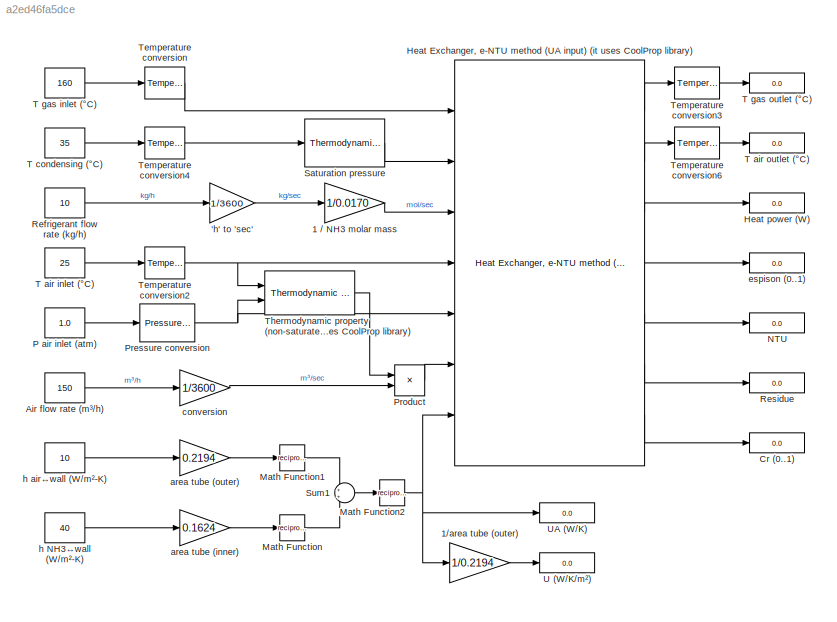
MODEL slx_a2ed46fa5dce
KIND model
CONFIG AbsTol = auto
CONFIG EnableMultiTasking = off
CONFIG FixedStep = auto
CONFIG MaxStep = auto
CONFIG MinStep = auto
CONFIG RelTol = 1e-3
CONFIG SampleTimeConstraint = Unconstrained
CONFIG Solver = VariableStepAuto
CONFIG SolverName = VariableStepAuto
CONFIG StartTime = 0.0
CONFIG StopTime = 0
BLOCK [Gain] 'h' to 'sec'
  Gain = 1/3600
  OutDataTypeStr = Inherit: Inherit via internal rule
  ParamDataTypeStr = Inherit: Inherit via internal rule
  SaturateOnIntegerOverflow = off
BLOCK [Gain] 1 // NH3 molar mass
  Gain = 1/0.0170
  OutDataTypeStr = Inherit: Inherit via internal rule
  ParamDataTypeStr = Inherit: Inherit via internal rule
  SaturateOnIntegerOverflow = off
BLOCK [Gain] 1//area tube (outer)
  Gain = 1/0.2194
  OutDataTypeStr = Inherit: Inherit via internal rule
  ParamDataTypeStr = Inherit: Inherit via internal rule
  SaturateOnIntegerOverflow = off
BLOCK [Constant] Air flow rate (m³//h)
  Value = 150
BLOCK [Display] Cr (0..1)
  Decimation = 1
  Ports = [1]
BLOCK [Reference] Heat Exchanger, e-NTU method (UA input) (it uses CoolProp library)  REF=thermochemical/Heat exchangers/Heat Exchanger, e-NTU method (UA input)  (lib defined in slx_f9e0643dc704)
(it uses CoolProp library)
  Ports = [7, 7]
  SourceBlock = thermochemical/Heat exchangers/Heat Exchanger, e-NTU method (UA input)\n(it uses CoolProp library)
  SourceProductName = @ Thermochemical
  SourceType = heat_exchanger_eNTU
BLOCK [Display] Heat power (W) 
  Decimation = 1
  Ports = [1]
BLOCK [Math] Math Function
  Operator = reciprocal
  Ports = [1, 1]
BLOCK [Math] Math Function1
  Operator = reciprocal
  Ports = [1, 1]
BLOCK [Math] Math Function2
  Operator = reciprocal
  Ports = [1, 1]
BLOCK [Display] NTU
  Decimation = 1
  Ports = [1]
BLOCK [Constant] P air inlet (atm) 
  Value = 1.0
BLOCK [Reference] Pressure conversion  REF=thermochemical/Conversions/Pressure  (lib defined in slx_f9e0643dc704)
conversion
  Ports = [1, 1]
  SourceBlock = thermochemical/Conversions/Pressure\nconversion
  SourceProductName = @ Thermochemical
  SourceType = convert_pressure
BLOCK [Product] Product
  InputSameDT = off
  OutDataTypeStr = Inherit: Inherit via internal rule
  Ports = [2, 1]
  RndMeth = Floor
  SaturateOnIntegerOverflow = off
BLOCK [Constant] Refrigerant flow rate (kg//h)
  Value = 10
BLOCK [Display] Residue
  Decimation = 1
  Ports = [1]
BLOCK [Reference] Saturation pressure  REF=thermochemical/Thermodynamic fluid properties/Thermodynamic   (lib defined in slx_f9e0643dc704)
property (saturated)
(it uses CoolProp library)
  Ports = [1, 1]
  SourceBlock = thermochemical/Thermodynamic fluid properties/Thermodynamic \nproperty (saturated)\n(it uses CoolProp library)
  SourceProductName = @ Thermochemical
  SourceType = thermodynamic_properties_saturated
BLOCK [Sum] Sum1
  IconShape = round
  InputSameDT = off
  OutDataTypeStr = Inherit: Inherit via internal rule
  Ports = [2, 1]
  SaturateOnIntegerOverflow = off
BLOCK [Constant] T air inlet (°C)
  Value = 25
BLOCK [Display] T air outlet (°C)
  Decimation = 1
  Ports = [1]
BLOCK [Constant] T condensing (°C)
  Value = 35
BLOCK [Constant] T gas inlet (°C)
  Value = 160
BLOCK [Display] T gas outlet (°C) 
  Decimation = 1
  Ports = [1]
BLOCK [Reference] Temperature conversion  REF=thermochemical/Conversions/Temperature  (lib defined in slx_f9e0643dc704)
conversion
  Ports = [1, 1]
  SourceBlock = thermochemical/Conversions/Temperature\nconversion
  SourceProductName = @ Thermochemical
  SourceType = convert_temperature
BLOCK [Reference] Temperature conversion2  REF=thermochemical/Conversions/Temperature  (lib defined in slx_f9e0643dc704)
conversion
  Ports = [1, 1]
  SourceBlock = thermochemical/Conversions/Temperature\nconversion
  SourceProductName = @ Thermochemical
  SourceType = convert_temperature
BLOCK [Reference] Temperature conversion3  REF=thermochemical/Conversions/Temperature  (lib defined in slx_f9e0643dc704)
conversion
  Ports = [1, 1]
  SourceBlock = thermochemical/Conversions/Temperature\nconversion
  SourceProductName = @ Thermochemical
  SourceType = convert_temperature
BLOCK [Reference] Temperature conversion4  REF=thermochemical/Conversions/Temperature  (lib defined in slx_f9e0643dc704)
conversion
  Ports = [1, 1]
  SourceBlock = thermochemical/Conversions/Temperature\nconversion
  SourceProductName = @ Thermochemical
  SourceType = convert_temperature
BLOCK [Reference] Temperature conversion6  REF=thermochemical/Conversions/Temperature  (lib defined in slx_f9e0643dc704)
conversion
  Ports = [1, 1]
  SourceBlock = thermochemical/Conversions/Temperature\nconversion
  SourceProductName = @ Thermochemical
  SourceType = convert_temperature
BLOCK [Reference] Thermodynamic property (non-saturated) (it uses CoolProp library)  REF=thermochemical/Thermodynamic fluid properties/Thermodynamic   (lib defined in slx_f9e0643dc704)
property (non-saturated)
(it uses CoolProp library)
  Ports = [2, 1]
  SourceBlock = thermochemical/Thermodynamic fluid properties/Thermodynamic \nproperty (non-saturated)\n(it uses CoolProp library)
  SourceProductName = @ Thermochemical
  SourceType = thermodynamic_properties_nonsaturated_interpreted
BLOCK [Display] U (W//K//m²)
  Decimation = 1
  Ports = [1]
BLOCK [Display] UA (W//K)
  Decimation = 1
  Ports = [1]
BLOCK [Gain] area tube (inner)
  Gain = 0.1624
  OutDataTypeStr = Inherit: Inherit via internal rule
  ParamDataTypeStr = Inherit: Inherit via internal rule
  SaturateOnIntegerOverflow = off
BLOCK [Gain] area tube (outer)
  Gain = 0.2194
  OutDataTypeStr = Inherit: Inherit via internal rule
  ParamDataTypeStr = Inherit: Inherit via internal rule
  SaturateOnIntegerOverflow = off
BLOCK [Gain] conversion
  Gain = 1/3600
  OutDataTypeStr = Inherit: Inherit via internal rule
  ParamDataTypeStr = Inherit: Inherit via internal rule
  SaturateOnIntegerOverflow = off
BLOCK [Display] espison (0..1)
  Decimation = 1
  Ports = [1]
BLOCK [Constant] h NH3↔wall (W//m²-K)
  Value = 40
BLOCK [Constant] h air↔wall (W//m²-K)
  Value = 10
LINE 'h' to 'sec':1 -> 1 // NH3 molar mass:1
LINE 1 // NH3 molar mass:1 -> Heat Exchanger, e-NTU method (UA input) (it uses CoolProp library):3
LINE 1//area tube (outer):1 -> U (W//K//m²):1
LINE Air flow rate (m³//h):1 -> conversion:1
LINE Heat Exchanger, e-NTU method (UA input) (it uses CoolProp library):1 -> Temperature conversion3:1
LINE Heat Exchanger, e-NTU method (UA input) (it uses CoolProp library):2 -> Temperature conversion6:1
LINE Heat Exchanger, e-NTU method (UA input) (it uses CoolProp library):3 -> Heat power (W) :1
LINE Heat Exchanger, e-NTU method (UA input) (it uses CoolProp library):4 -> espison (0..1):1
LINE Heat Exchanger, e-NTU method (UA input) (it uses CoolProp library):5 -> NTU:1
LINE Heat Exchanger, e-NTU method (UA input) (it uses CoolProp library):6 -> Residue:1
LINE Heat Exchanger, e-NTU method (UA input) (it uses CoolProp library):7 -> Cr (0..1):1
LINE Math Function1:1 -> Sum1:1
NET Math Function2:1 -> 1//area tube (outer):1, Heat Exchanger, e-NTU method (UA input) (it uses CoolProp library):7, UA (W//K):1
LINE Math Function:1 -> Sum1:2
LINE P air inlet (atm) :1 -> Pressure conversion:1
NET Pressure conversion:1 -> Heat Exchanger, e-NTU method (UA input) (it uses CoolProp library):5, Thermodynamic property (non-saturated) (it uses CoolProp library):2
LINE Product:1 -> Heat Exchanger, e-NTU method (UA input) (it uses CoolProp library):6
LINE Refrigerant flow rate (kg//h):1 -> 'h' to 'sec':1
LINE Saturation pressure:1 -> Heat Exchanger, e-NTU method (UA input) (it uses CoolProp library):2
LINE Sum1:1 -> Math Function2:1
LINE T air inlet (°C):1 -> Temperature conversion2:1
LINE T condensing (°C):1 -> Temperature conversion4:1
LINE T gas inlet (°C):1 -> Temperature conversion:1
NET Temperature conversion2:1 -> Heat Exchanger, e-NTU method (UA input) (it uses CoolProp library):4, Thermodynamic property (non-saturated) (it uses CoolProp library):1
LINE Temperature conversion3:1 -> T gas outlet (°C) :1
LINE Temperature conversion4:1 -> Saturation pressure:1
LINE Temperature conversion6:1 -> T air outlet (°C):1
LINE Temperature conversion:1 -> Heat Exchanger, e-NTU method (UA input) (it uses CoolProp library):1
LINE Thermodynamic property (non-saturated) (it uses CoolProp library):1 -> Product:1
LINE area tube (inner):1 -> Math Function:1
LINE area tube (outer):1 -> Math Function1:1
LINE conversion:1 -> Product:2
LINE h NH3↔wall (W//m²-K):1 -> area tube (inner):1
LINE h air↔wall (W//m²-K):1 -> area tube (outer):1
note: NET lines group one-source signal fan-out (src -> all destinations, sorted); 1:1 wires keep LINE
